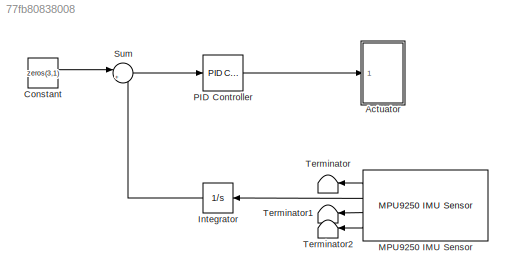
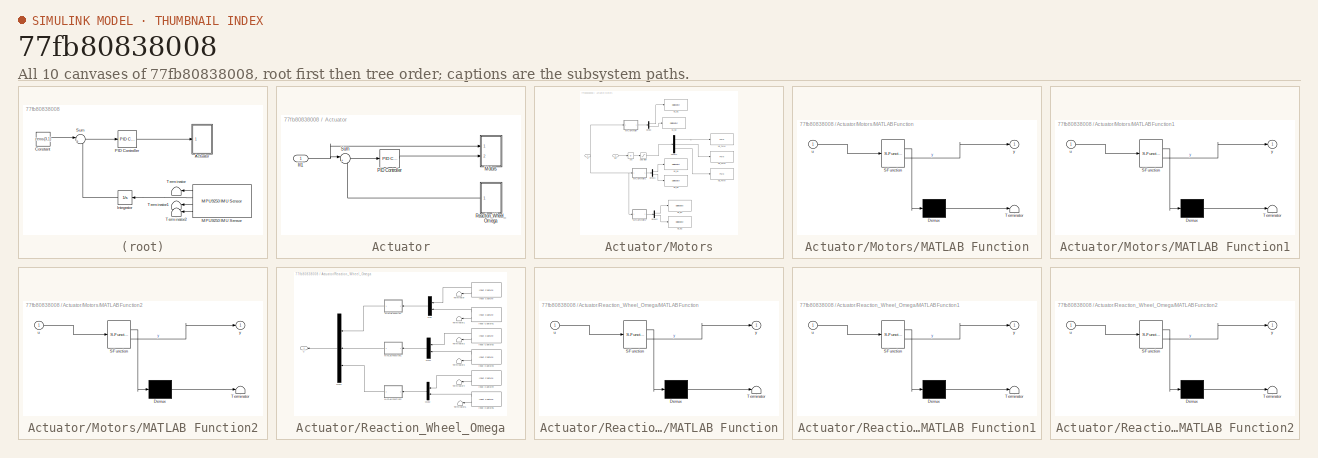
[diagram: thumbnail index - all 10 canvases of the model, root first then tree order]
MODEL slx_77fb80838008
KIND model
CONFIG AbsTol = auto
CONFIG EnableMultiTasking = off
CONFIG FixedStep = auto
CONFIG MaxStep = auto
CONFIG MinStep = auto
CONFIG RelTol = 1e-3
CONFIG SampleTimeConstraint = Unconstrained
CONFIG SolverName = VariableStepAuto
CONFIG StartTime = 0.0
CONFIG StopTime = 10.0
BLOCK [SubSystem] Actuator
  Ports = [1]
  RequestExecContextInheritance = off
BLOCK [Inport] Actuator/In1
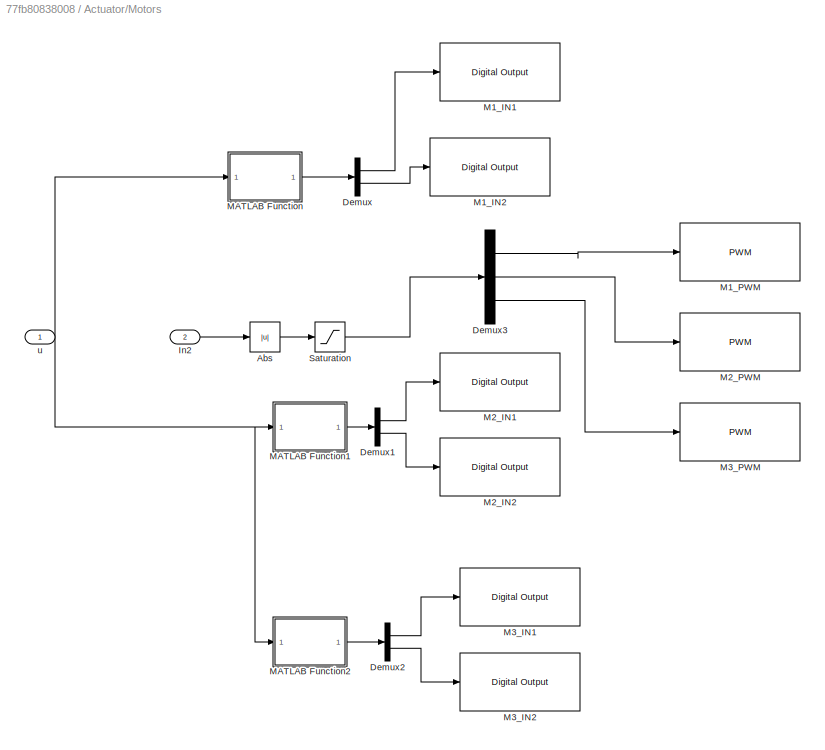
BLOCK [SubSystem] Actuator/Motors
  Ports = [2]
  RequestExecContextInheritance = off
BLOCK [Abs] Actuator/Motors/Abs
  SaturateOnIntegerOverflow = off
BLOCK [Demux] Actuator/Motors/Demux
  Outputs = 2
  Ports = [1, 2]
BLOCK [Demux] Actuator/Motors/Demux1
  Outputs = 2
  Ports = [1, 2]
BLOCK [Demux] Actuator/Motors/Demux2
  Outputs = 2
  Ports = [1, 2]
BLOCK [Demux] Actuator/Motors/Demux3
  Outputs = 3
  Ports = [1, 3]
BLOCK [Inport] Actuator/Motors/In2
  Port = 2
BLOCK [Reference] Actuator/Motors/M1_IN1  REF=arduinolib/Digital Output
  Ports = [1]
  SourceBlock = arduinolib/Digital Output
  SourceProductBaseCode = ARDUINO
  SourceType = Arduino Digital Output
BLOCK [Reference] Actuator/Motors/M1_IN2  REF=arduinolib/Digital Output
  Ports = [1]
  SourceBlock = arduinolib/Digital Output
  SourceProductBaseCode = ARDUINO
  SourceType = Arduino Digital Output
BLOCK [Reference] Actuator/Motors/M1_PWM  REF=arduinolib/PWM
  Ports = [1]
  SourceBlock = arduinolib/PWM
  SourceProductBaseCode = ARDUINO
  SourceType = Arduino PWM
BLOCK [Reference] Actuator/Motors/M2_IN1  REF=arduinolib/Digital Output
  Ports = [1]
  SourceBlock = arduinolib/Digital Output
  SourceProductBaseCode = ARDUINO
  SourceType = Arduino Digital Output
BLOCK [Reference] Actuator/Motors/M2_IN2  REF=arduinolib/Digital Output
  Ports = [1]
  SourceBlock = arduinolib/Digital Output
  SourceProductBaseCode = ARDUINO
  SourceType = Arduino Digital Output
BLOCK [Reference] Actuator/Motors/M2_PWM  REF=arduinolib/PWM
  Ports = [1]
  SourceBlock = arduinolib/PWM
  SourceProductBaseCode = ARDUINO
  SourceType = Arduino PWM
BLOCK [Reference] Actuator/Motors/M3_IN1  REF=arduinolib/Digital Output
  Ports = [1]
  SourceBlock = arduinolib/Digital Output
  SourceProductBaseCode = ARDUINO
  SourceType = Arduino Digital Output
BLOCK [Reference] Actuator/Motors/M3_IN2  REF=arduinolib/Digital Output
  Ports = [1]
  SourceBlock = arduinolib/Digital Output
  SourceProductBaseCode = ARDUINO
  SourceType = Arduino Digital Output
BLOCK [Reference] Actuator/Motors/M3_PWM  REF=arduinolib/PWM
  Ports = [1]
  SourceBlock = arduinolib/PWM
  SourceProductBaseCode = ARDUINO
  SourceType = Arduino PWM
BLOCK [SubSystem] Actuator/Motors/MATLAB Function
  ErrorFcn = Stateflow.Translate.translate
  PermitHierarchicalResolution = ExplicitOnly
  Ports = [1, 1]
  RequestExecContextInheritance = off
  SFBlockType = MATLAB Function
  TreatAsAtomicUnit = on
BLOCK [Demux] Actuator/Motors/MATLAB Function/ Demux 
  Outputs = 1
  Ports = [1, 1]
BLOCK [S-Function] Actuator/Motors/MATLAB Function/ SFunction 
  EnableBusSupport = off
  FunctionName = sf_sfun
  PortCounts = [1 2]
  Ports = [1, 2]
  SFcnIsStateOwnerBlock = off
  SFunctionDeploymentMode = off
  Tag = Stateflow S-Function 4
BLOCK [Terminator] Actuator/Motors/MATLAB Function/ Terminator 
BLOCK [Inport] Actuator/Motors/MATLAB Function/u
BLOCK [Outport] Actuator/Motors/MATLAB Function/y
BLOCK [SubSystem] Actuator/Motors/MATLAB Function1
  ErrorFcn = Stateflow.Translate.translate
  PermitHierarchicalResolution = ExplicitOnly
  Ports = [1, 1]
  RequestExecContextInheritance = off
  SFBlockType = MATLAB Function
  TreatAsAtomicUnit = on
BLOCK [Demux] Actuator/Motors/MATLAB Function1/ Demux 
  Outputs = 1
  Ports = [1, 1]
BLOCK [S-Function] Actuator/Motors/MATLAB Function1/ SFunction 
  EnableBusSupport = off
  FunctionName = sf_sfun
  PortCounts = [1 2]
  Ports = [1, 2]
  SFcnIsStateOwnerBlock = off
  SFunctionDeploymentMode = off
  Tag = Stateflow S-Function 5
BLOCK [Terminator] Actuator/Motors/MATLAB Function1/ Terminator 
BLOCK [Inport] Actuator/Motors/MATLAB Function1/u
BLOCK [Outport] Actuator/Motors/MATLAB Function1/y
BLOCK [SubSystem] Actuator/Motors/MATLAB Function2
  ErrorFcn = Stateflow.Translate.translate
  PermitHierarchicalResolution = ExplicitOnly
  Ports = [1, 1]
  RequestExecContextInheritance = off
  SFBlockType = MATLAB Function
  TreatAsAtomicUnit = on
BLOCK [Demux] Actuator/Motors/MATLAB Function2/ Demux 
  Outputs = 1
  Ports = [1, 1]
BLOCK [S-Function] Actuator/Motors/MATLAB Function2/ SFunction 
  EnableBusSupport = off
  FunctionName = sf_sfun
  PortCounts = [1 2]
  Ports = [1, 2]
  SFcnIsStateOwnerBlock = off
  SFunctionDeploymentMode = off
  Tag = Stateflow S-Function 6
BLOCK [Terminator] Actuator/Motors/MATLAB Function2/ Terminator 
BLOCK [Inport] Actuator/Motors/MATLAB Function2/u
BLOCK [Outport] Actuator/Motors/MATLAB Function2/y
BLOCK [Saturate] Actuator/Motors/Saturation
  LowerLimit = 0
  UpperLimit = 255
BLOCK [Inport] Actuator/Motors/u
BLOCK [Reference] Actuator/PID Controller  REF=pid_lib/PID Controller
  Ports = [1, 1]
  SourceBlock = pid_lib/PID Controller
  SourceProductBaseCode = SL
  SourceType = PID 1dof
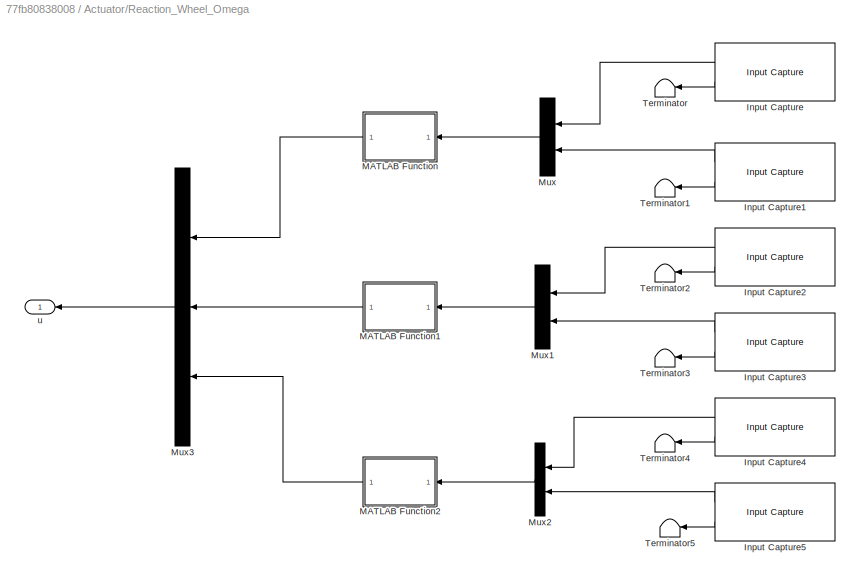
BLOCK [SubSystem] Actuator/Reaction_Wheel_Omega
  Ports = [0, 1]
  RequestExecContextInheritance = off
BLOCK [Reference] Actuator/Reaction_Wheel_Omega/Input Capture  REF=arduinolib/Input Capture
  Ports = [0, 2]
  SourceBlock = arduinolib/Input Capture
  SourceProductBaseCode = ARDUINO
  SourceType = codertarget.arduinobase.internal.arduinoInputCapture
BLOCK [Reference] Actuator/Reaction_Wheel_Omega/Input Capture1  REF=arduinolib/Input Capture
  Ports = [0, 2]
  SourceBlock = arduinolib/Input Capture
  SourceProductBaseCode = ARDUINO
  SourceType = codertarget.arduinobase.internal.arduinoInputCapture
BLOCK [Reference] Actuator/Reaction_Wheel_Omega/Input Capture2  REF=arduinolib/Input Capture
  Ports = [0, 2]
  SourceBlock = arduinolib/Input Capture
  SourceProductBaseCode = ARDUINO
  SourceType = codertarget.arduinobase.internal.arduinoInputCapture
BLOCK [Reference] Actuator/Reaction_Wheel_Omega/Input Capture3  REF=arduinolib/Input Capture
  Ports = [0, 2]
  SourceBlock = arduinolib/Input Capture
  SourceProductBaseCode = ARDUINO
  SourceType = codertarget.arduinobase.internal.arduinoInputCapture
BLOCK [Reference] Actuator/Reaction_Wheel_Omega/Input Capture4  REF=arduinolib/Input Capture
  Ports = [0, 2]
  SourceBlock = arduinolib/Input Capture
  SourceProductBaseCode = ARDUINO
  SourceType = codertarget.arduinobase.internal.arduinoInputCapture
BLOCK [Reference] Actuator/Reaction_Wheel_Omega/Input Capture5  REF=arduinolib/Input Capture
  Ports = [0, 2]
  SourceBlock = arduinolib/Input Capture
  SourceProductBaseCode = ARDUINO
  SourceType = codertarget.arduinobase.internal.arduinoInputCapture
BLOCK [SubSystem] Actuator/Reaction_Wheel_Omega/MATLAB Function
  ErrorFcn = Stateflow.Translate.translate
  PermitHierarchicalResolution = ExplicitOnly
  Ports = [1, 1]
  RequestExecContextInheritance = off
  SFBlockType = MATLAB Function
  TreatAsAtomicUnit = on
BLOCK [Demux] Actuator/Reaction_Wheel_Omega/MATLAB Function/ Demux 
  Outputs = 1
  Ports = [1, 1]
BLOCK [S-Function] Actuator/Reaction_Wheel_Omega/MATLAB Function/ SFunction 
  EnableBusSupport = off
  FunctionName = sf_sfun
  PortCounts = [1 2]
  Ports = [1, 2]
  SFcnIsStateOwnerBlock = off
  SFunctionDeploymentMode = off
  Tag = Stateflow S-Function 2
BLOCK [Terminator] Actuator/Reaction_Wheel_Omega/MATLAB Function/ Terminator 
BLOCK [Inport] Actuator/Reaction_Wheel_Omega/MATLAB Function/u
BLOCK [Outport] Actuator/Reaction_Wheel_Omega/MATLAB Function/y
BLOCK [SubSystem] Actuator/Reaction_Wheel_Omega/MATLAB Function1
  ErrorFcn = Stateflow.Translate.translate
  PermitHierarchicalResolution = ExplicitOnly
  Ports = [1, 1]
  RequestExecContextInheritance = off
  SFBlockType = MATLAB Function
  TreatAsAtomicUnit = on
BLOCK [Demux] Actuator/Reaction_Wheel_Omega/MATLAB Function1/ Demux 
  Outputs = 1
  Ports = [1, 1]
BLOCK [S-Function] Actuator/Reaction_Wheel_Omega/MATLAB Function1/ SFunction 
  EnableBusSupport = off
  FunctionName = sf_sfun
  PortCounts = [1 2]
  Ports = [1, 2]
  SFcnIsStateOwnerBlock = off
  SFunctionDeploymentMode = off
  Tag = Stateflow S-Function 1
BLOCK [Terminator] Actuator/Reaction_Wheel_Omega/MATLAB Function1/ Terminator 
BLOCK [Inport] Actuator/Reaction_Wheel_Omega/MATLAB Function1/u
BLOCK [Outport] Actuator/Reaction_Wheel_Omega/MATLAB Function1/y
BLOCK [SubSystem] Actuator/Reaction_Wheel_Omega/MATLAB Function2
  ErrorFcn = Stateflow.Translate.translate
  PermitHierarchicalResolution = ExplicitOnly
  Ports = [1, 1]
  RequestExecContextInheritance = off
  SFBlockType = MATLAB Function
  TreatAsAtomicUnit = on
BLOCK [Demux] Actuator/Reaction_Wheel_Omega/MATLAB Function2/ Demux 
  Outputs = 1
  Ports = [1, 1]
BLOCK [S-Function] Actuator/Reaction_Wheel_Omega/MATLAB Function2/ SFunction 
  EnableBusSupport = off
  FunctionName = sf_sfun
  PortCounts = [1 2]
  Ports = [1, 2]
  SFcnIsStateOwnerBlock = off
  SFunctionDeploymentMode = off
  Tag = Stateflow S-Function 3
BLOCK [Terminator] Actuator/Reaction_Wheel_Omega/MATLAB Function2/ Terminator 
BLOCK [Inport] Actuator/Reaction_Wheel_Omega/MATLAB Function2/u
BLOCK [Outport] Actuator/Reaction_Wheel_Omega/MATLAB Function2/y
BLOCK [Mux] Actuator/Reaction_Wheel_Omega/Mux
  DisplayOption = bar
  Inputs = 2
  Ports = [2, 1]
BLOCK [Mux] Actuator/Reaction_Wheel_Omega/Mux1
  DisplayOption = bar
  Inputs = 2
  Ports = [2, 1]
BLOCK [Mux] Actuator/Reaction_Wheel_Omega/Mux2
  DisplayOption = bar
  Inputs = 2
  Ports = [2, 1]
BLOCK [Mux] Actuator/Reaction_Wheel_Omega/Mux3
  DisplayOption = bar
  Inputs = 3
  Ports = [3, 1]
BLOCK [Terminator] Actuator/Reaction_Wheel_Omega/Terminator
BLOCK [Terminator] Actuator/Reaction_Wheel_Omega/Terminator1
BLOCK [Terminator] Actuator/Reaction_Wheel_Omega/Terminator2
BLOCK [Terminator] Actuator/Reaction_Wheel_Omega/Terminator3
BLOCK [Terminator] Actuator/Reaction_Wheel_Omega/Terminator4
BLOCK [Terminator] Actuator/Reaction_Wheel_Omega/Terminator5
BLOCK [Outport] Actuator/Reaction_Wheel_Omega/u
BLOCK [Sum] Actuator/Sum
  Inputs = |+-
  Ports = [2, 1]
BLOCK [Constant] Constant
  Value = zeros(3,1)
BLOCK [Integrator] Integrator
  Ports = [1, 1]
BLOCK [Reference] MPU9250 IMU Sensor  REF=arduinosensorlib/MPU9250 IMU Sensor
  Ports = [0, 4]
  SourceBlock = arduinosensorlib/MPU9250 IMU Sensor
  SourceProductBaseCode = ARDUINO
  SourceType = Arduino MPU9250
BLOCK [Reference] PID Controller  REF=pid_lib/PID Controller
  Ports = [1, 1]
  SourceBlock = pid_lib/PID Controller
  SourceProductBaseCode = SL
  SourceType = PID 1dof
BLOCK [Sum] Sum
  Inputs = |+-
  Ports = [2, 1]
BLOCK [Terminator] Terminator
BLOCK [Terminator] Terminator1
BLOCK [Terminator] Terminator2
NET Actuator/In1:1 -> Actuator/Motors:1, Actuator/Sum:1
LINE Actuator/Motors/Abs:1 -> Actuator/Motors/Saturation:1
LINE Actuator/Motors/Demux1:1 -> Actuator/Motors/M2_IN1:1
LINE Actuator/Motors/Demux1:2 -> Actuator/Motors/M2_IN2:1
LINE Actuator/Motors/Demux2:1 -> Actuator/Motors/M3_IN1:1
LINE Actuator/Motors/Demux2:2 -> Actuator/Motors/M3_IN2:1
LINE Actuator/Motors/Demux3:1 -> Actuator/Motors/M1_PWM:1
LINE Actuator/Motors/Demux3:2 -> Actuator/Motors/M2_PWM:1
LINE Actuator/Motors/Demux3:3 -> Actuator/Motors/M3_PWM:1
LINE Actuator/Motors/Demux:1 -> Actuator/Motors/M1_IN1:1
LINE Actuator/Motors/Demux:2 -> Actuator/Motors/M1_IN2:1
LINE Actuator/Motors/In2:1 -> Actuator/Motors/Abs:1
LINE Actuator/Motors/MATLAB Function1:1 -> Actuator/Motors/Demux1:1
LINE Actuator/Motors/MATLAB Function2:1 -> Actuator/Motors/Demux2:1
LINE Actuator/Motors/MATLAB Function:1 -> Actuator/Motors/Demux:1
LINE Actuator/Motors/Saturation:1 -> Actuator/Motors/Demux3:1
NET Actuator/Motors/u:1 -> Actuator/Motors/MATLAB Function1:1, Actuator/Motors/MATLAB Function2:1, Actuator/Motors/MATLAB Function:1
LINE Actuator/PID Controller:1 -> Actuator/Motors:2
LINE Actuator/Reaction_Wheel_Omega/Input Capture1:1 -> Actuator/Reaction_Wheel_Omega/Mux:2
LINE Actuator/Reaction_Wheel_Omega/Input Capture1:2 -> Actuator/Reaction_Wheel_Omega/Terminator1:1
LINE Actuator/Reaction_Wheel_Omega/Input Capture2:1 -> Actuator/Reaction_Wheel_Omega/Mux1:1
LINE Actuator/Reaction_Wheel_Omega/Input Capture2:2 -> Actuator/Reaction_Wheel_Omega/Terminator2:1
LINE Actuator/Reaction_Wheel_Omega/Input Capture3:1 -> Actuator/Reaction_Wheel_Omega/Mux1:2
LINE Actuator/Reaction_Wheel_Omega/Input Capture3:2 -> Actuator/Reaction_Wheel_Omega/Terminator3:1
LINE Actuator/Reaction_Wheel_Omega/Input Capture4:1 -> Actuator/Reaction_Wheel_Omega/Mux2:1
LINE Actuator/Reaction_Wheel_Omega/Input Capture4:2 -> Actuator/Reaction_Wheel_Omega/Terminator4:1
LINE Actuator/Reaction_Wheel_Omega/Input Capture5:1 -> Actuator/Reaction_Wheel_Omega/Mux2:2
LINE Actuator/Reaction_Wheel_Omega/Input Capture5:2 -> Actuator/Reaction_Wheel_Omega/Terminator5:1
LINE Actuator/Reaction_Wheel_Omega/Input Capture:1 -> Actuator/Reaction_Wheel_Omega/Mux:1
LINE Actuator/Reaction_Wheel_Omega/Input Capture:2 -> Actuator/Reaction_Wheel_Omega/Terminator:1
LINE Actuator/Reaction_Wheel_Omega/MATLAB Function1:1 -> Actuator/Reaction_Wheel_Omega/Mux3:2
LINE Actuator/Reaction_Wheel_Omega/MATLAB Function2:1 -> Actuator/Reaction_Wheel_Omega/Mux3:3
LINE Actuator/Reaction_Wheel_Omega/MATLAB Function:1 -> Actuator/Reaction_Wheel_Omega/Mux3:1
LINE Actuator/Reaction_Wheel_Omega/Mux1:1 -> Actuator/Reaction_Wheel_Omega/MATLAB Function1:1
LINE Actuator/Reaction_Wheel_Omega/Mux2:1 -> Actuator/Reaction_Wheel_Omega/MATLAB Function2:1
LINE Actuator/Reaction_Wheel_Omega/Mux3:1 -> Actuator/Reaction_Wheel_Omega/u:1
LINE Actuator/Reaction_Wheel_Omega/Mux:1 -> Actuator/Reaction_Wheel_Omega/MATLAB Function:1
LINE Actuator/Reaction_Wheel_Omega:1 -> Actuator/Sum:2
LINE Actuator/Sum:1 -> Actuator/PID Controller:1
LINE Constant:1 -> Sum:1
LINE Integrator:1 -> Sum:2
LINE MPU9250 IMU Sensor:1 -> Terminator:1
LINE MPU9250 IMU Sensor:2 -> Integrator:1
LINE MPU9250 IMU Sensor:3 -> Terminator1:1
LINE MPU9250 IMU Sensor:4 -> Terminator2:1
LINE PID Controller:1 -> Actuator:1
LINE Sum:1 -> PID Controller:1
note: NET lines group one-source signal fan-out (src -> all destinations, sorted); 1:1 wires keep LINE
CHART Actuator/Reaction_Wheel_Omega/MATLAB Function states=1 transitions=1
  STATE_LABEL 'eML_blk_kernel()'
  STATE_LABEL 'SCRIPT:\nfunction y = fcn(u)\nglobal omega_w1\nif u(1)>0\n    omega_w1=u(1)*2*pi/7;\nelse\n    omega_w1=-u(2)*2*pi/7;\nend\ny = omega_w1;\n'
CHART Actuator/Reaction_Wheel_Omega/MATLAB Function2 states=1 transitions=1
  STATE_LABEL 'eML_blk_kernel()'
  STATE_LABEL 'SCRIPT:\nfunction y = fcn(u)\nglobal omega_w3\nif u(1)>0\n    omega_w3=u(1)*2*pi/7;\nelse\n    omega_w3=-u(2)*2*pi/7;\nend\ny = omega_w3;\n'
CHART Actuator/Motors/MATLAB Function states=1 transitions=1
  STATE_LABEL 'eML_blk_kernel()'
  STATE_LABEL 'SCRIPT:\nfunction y = fcn(u)\nglobal m1\n\nif u(1)>0\n    m1(1)=1;\n    m1(2)=-1;\nelse\n    m1(1)=-1;\n    m1(2)=1;  \nend\n\n\ny = m1;\n'
CHART Actuator/Motors/MATLAB Function1 states=1 transitions=1
  STATE_LABEL 'eML_blk_kernel()'
  STATE_LABEL 'SCRIPT:\nfunction y = fcn(u)\nglobal m2\n\nif u(2)>0\n    m2(1)=1;\n    m2(2)=-1;\nelse\n    m2(1)=-1;\n    m2(2)=1;  \nend\n\n\ny = m2;\n'
CHART Actuator/Motors/MATLAB Function2 states=1 transitions=1
  STATE_LABEL 'eML_blk_kernel()'
  STATE_LABEL 'SCRIPT:\nfunction y = fcn(u)\nglobal m3\n\nif u(2)>0\n    m3(1)=1;\n    m3(2)=-1;\nelse\n    m3(1)=-1;\n    m3(2)=1;  \nend\n\n\ny = m3;\n'
CHART Actuator/Reaction_Wheel_Omega/MATLAB Function1 states=1 transitions=1
  STATE_LABEL 'eML_blk_kernel()'
  STATE_LABEL 'SCRIPT:\nfunction y = fcn(u)\nglobal omega_w2\nif u(1)>0\n    omega_w2=u(1)*2*pi/7;\nelse\n    omega_w2=-u(2)*2*pi/7;\nend\ny = omega_w2;\n'
CHART  states=0 transitions=0
CHART  states=0 transitions=0
CHART  states=0 transitions=0
CHART  states=0 transitions=0
CHART  states=0 transitions=0
CHART  states=0 transitions=0
